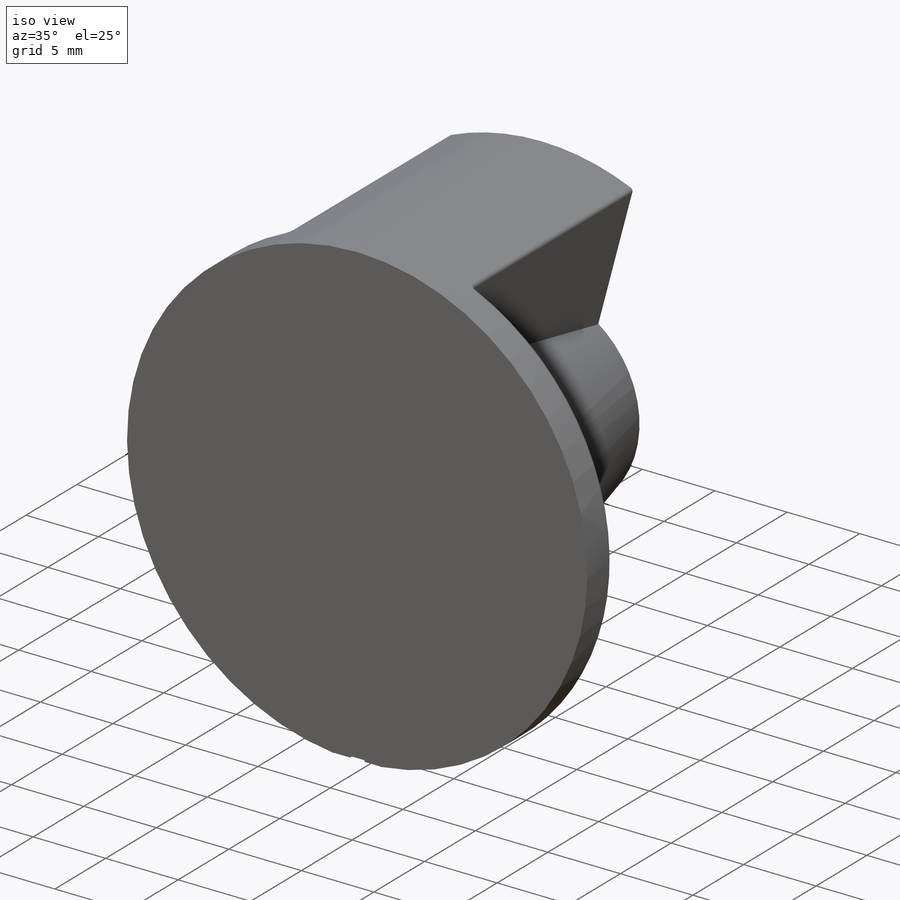
[diagram: iso view]
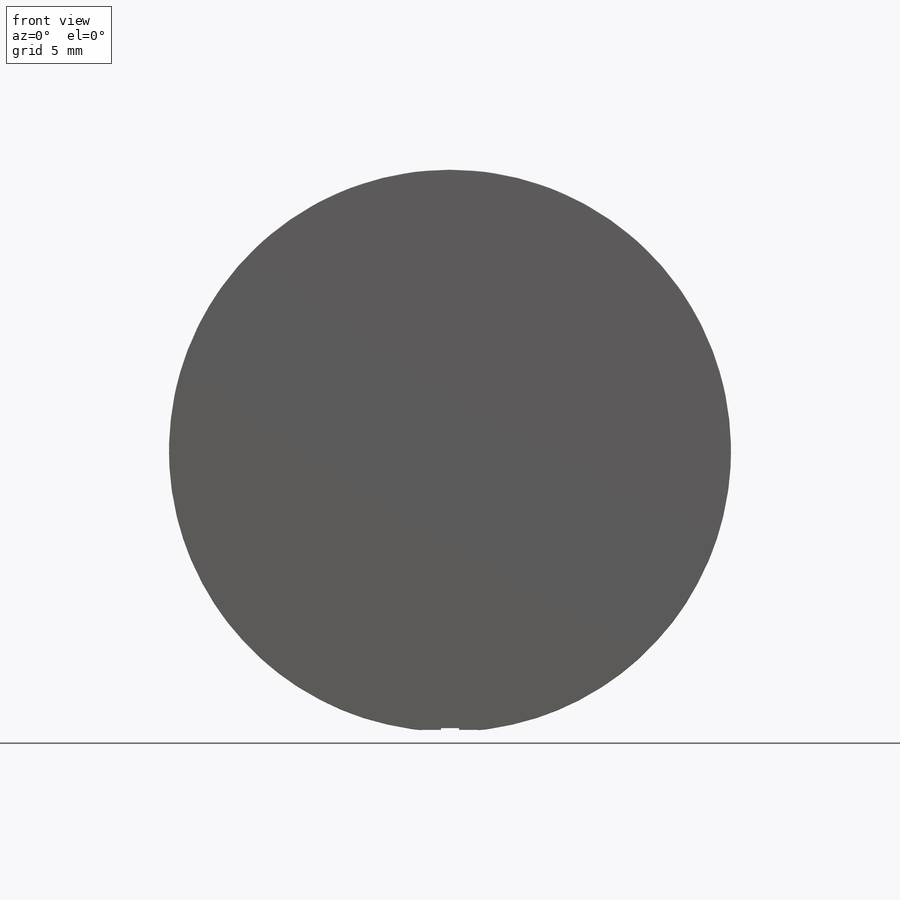
[diagram: front view]
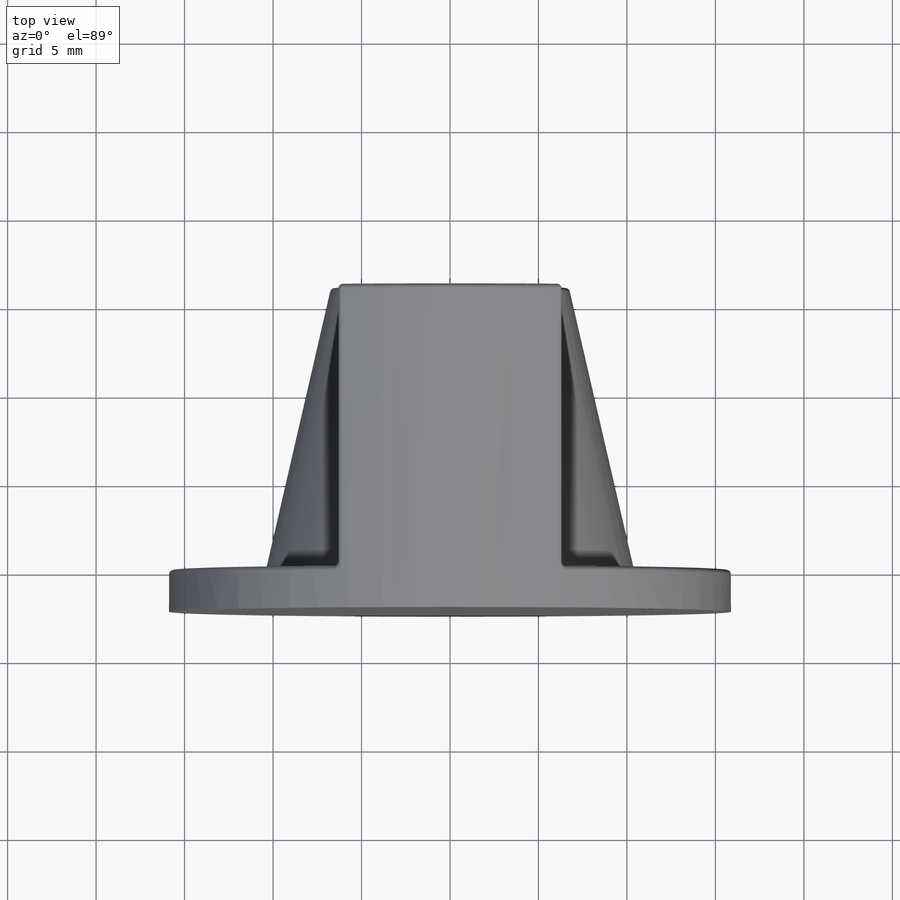
[diagram: top view]
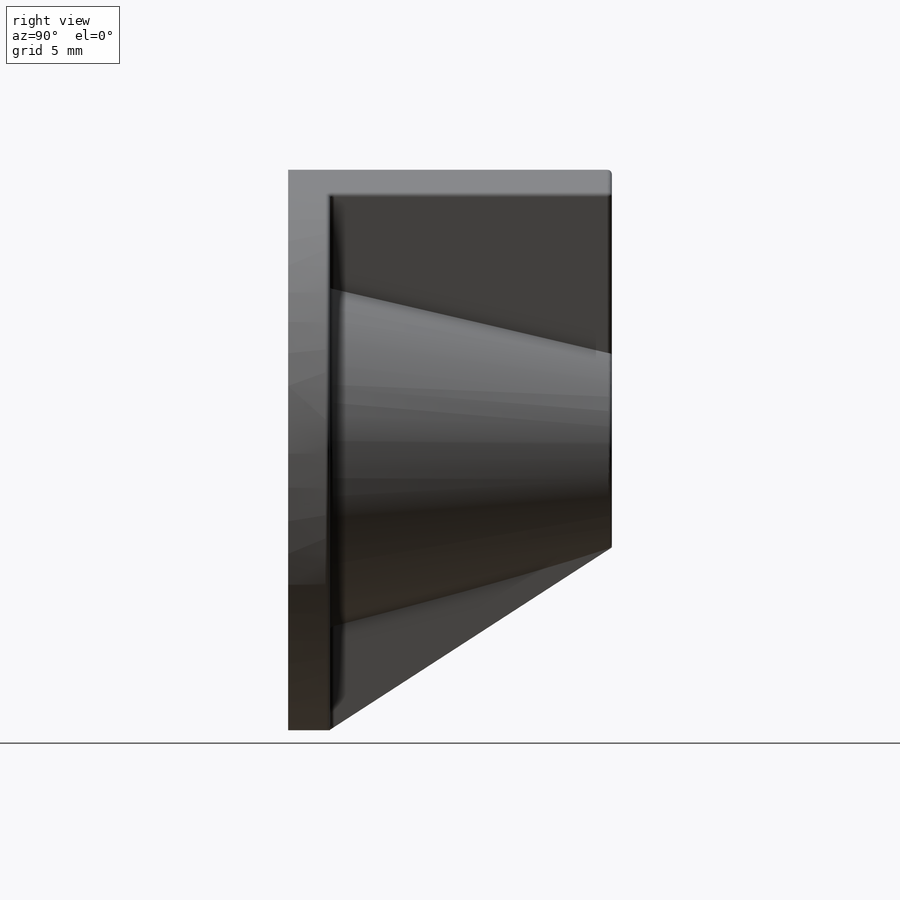
[diagram: right view]
SOLIDWORKS PART (.sldprt)
format: sldprt  version: not decoded by parser v0  size: 442,880 bytes
history: native  units: mm
features: sketch x11, cut_extrude x7, extrude x4, fillet x2, material x1, plane x1 (+11 scaffold rows collapsed)
feature tree (37):
  scaffold x11  (default folders/planes/origin — collapsed)
  material  "PMMA"
  sketch  "Skica2"  dims[D1=31.75mm]
  extrude  "Přidat vysunutím2"  Depth=2.3622mm
  sketch  "Skica3"  dims[D1=20.828mm]
  extrude  "Přidat vysunutím3"  Depth=15.9258mm
  sketch  "Skica4"  dims[D1=7.874mm D2=12.7mm]
  extrude  "Přidat vysunutím4"  Depth=15.9258mm
  sketch  "Skica5"  dims[D1=3.683mm]
  extrude  "Přidat vysunutím5"  Depth=15.9258mm
  sketch  "Skica6"
  cut_extrude  "Odebrat vysunutím1"  Depth=15.9258mm
  fillet  "Zaoblit5"  Radius=0.254mm
  fillet  "Zaoblit6"  Radius=0.254mm
  sketch  "Skica7"  dims[D1=1.5875mm D2=1.5875mm]
  cut_extrude  "Odebrat vysunutím2"  Depth=0.1016mm
  sketch  "Skica8"  dims[D1=0.508mm D2=0.508mm]
  cut_extrude  "Odebrat vysunutím3"  Depth=0.1016mm
  plane  "Rovina1"  Offset=15.875mm
  sketch  "Skica9"
  cut_extrude  "Odebrat vysunutím5"  Depth=0.1016mm
  sketch  "Skica12"
  cut_extrude  "Odebrat vysunutím6"  Depth=0.1016mm
  sketch  "Skica13"  dims[D1=6.35mm D2=5.4864mm]
  cut_extrude  "Odebrat vysunutím7"  Depth=15.748mm
  sketch  "Skica14"  dims[D1=9.652mm]
  cut_extrude  "Odebrat vysunutím8"  Depth=4.064mm
decode coverage: 21 of 24 modeling features carry decoded parameters
note: suppression state not decoded; provenance and decode notes live in map.json
